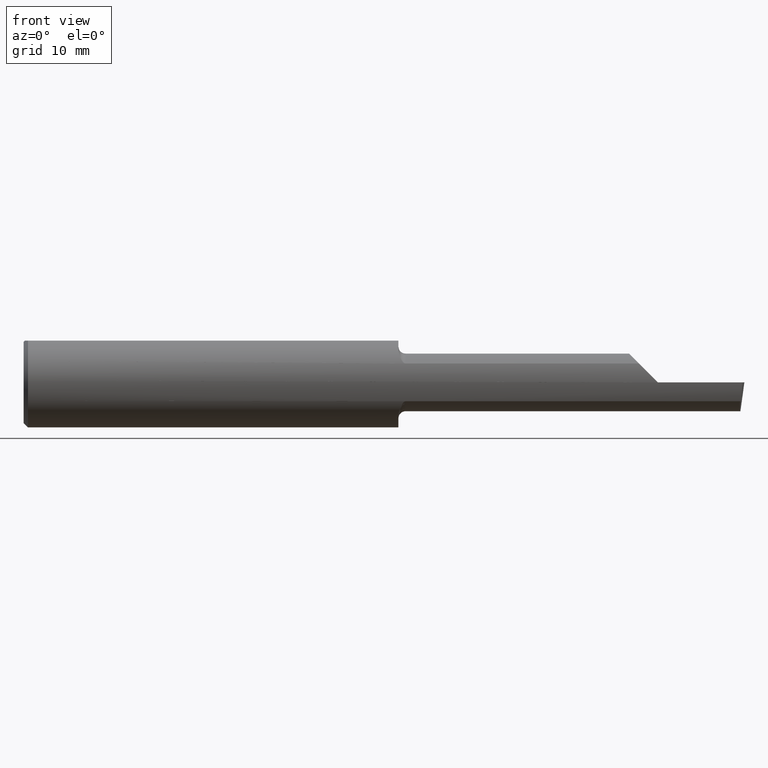
[diagram: clean part render]
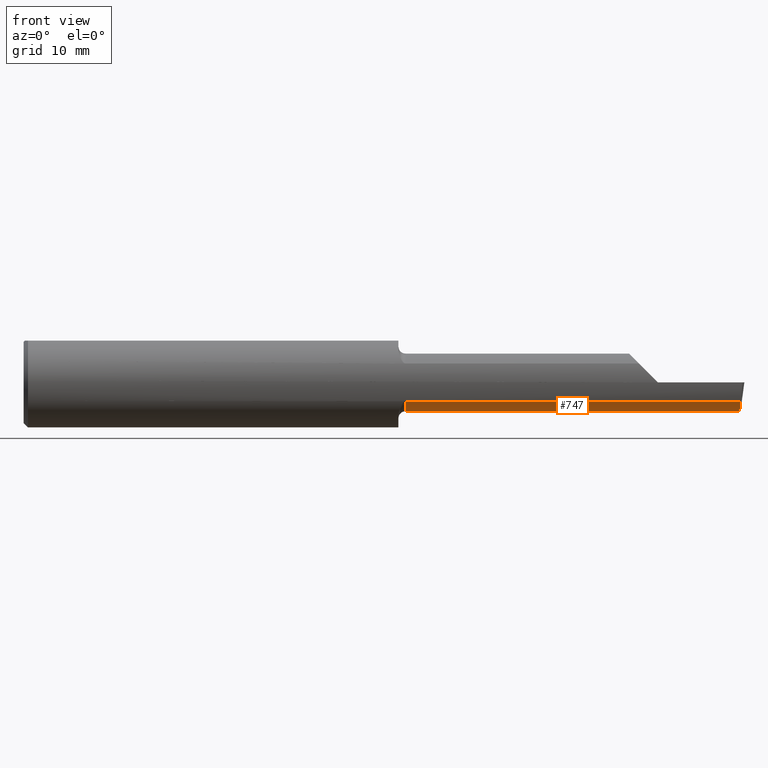
[diagram: same view with one face highlighted and labeled with its STEP entity id]
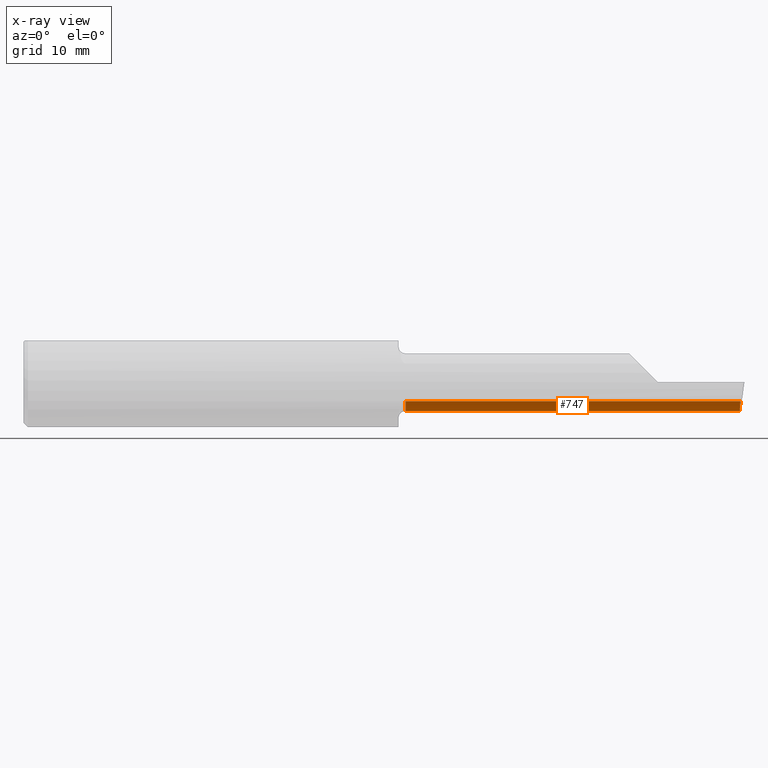
[diagram: x-ray of the same camera — body ghosted, the highlighted face saturated]
A machine part, front view. The second image highlights one B-rep face of the part: STEP entity #747.
The next image is the same camera in x-ray: the body ghosted, the highlighted face saturated — about 0% of this face is hidden behind the body in this view.
In plain terms, the highlighted cylindrical surface (edge-blend (fillet) strip) has radius 2.54 mm, axis along (-1, -0, -0).
Its self-contained STEP definition (entity closure, byte-faithful):
#10 = DIRECTION ( 'NONE',  ( 0.000000000000000000, 0.000000000000000000, -1.000000000000000000 ) ) ;
#44 = CYLINDRICAL_SURFACE ( 'NONE', #188, 2.540000000000000036 ) ;
#52 = CARTESIAN_POINT ( 'NONE',  ( 33.65500000000000114, -3.599887049924355154, -1.661794942640913098 ) ) ;
#82 = ORIENTED_EDGE ( 'NONE', *, *, #187, .F. ) ;
#95 = CARTESIAN_POINT ( 'NONE',  ( 33.65500000000000114, -1.678939999999999433, 0.000000000000000000 ) ) ;
#96 = CARTESIAN_POINT ( 'NONE',  ( 63.09847522314641566, -2.428222866824018222, -2.540000000000000480 ) ) ;
#130 = VERTEX_POINT ( 'NONE', #389 ) ;
#148 = AXIS2_PLACEMENT_3D ( 'NONE', #95, #579, #10 ) ;
#187 = EDGE_CURVE ( 'NONE', #398, #281, #1018, .T. ) ;
#188 = AXIS2_PLACEMENT_3D ( 'NONE', #325, #233, #414 ) ;
#211 = CARTESIAN_POINT ( 'NONE',  ( 63.11601083078465990, -3.109668751225285632, -2.228461364918260301 ) ) ;
#233 = DIRECTION ( 'NONE',  ( -1.000000000000000000, -0.000000000000000000, -0.000000000000000000 ) ) ;
#237 = EDGE_LOOP ( 'NONE', ( #482, #495, #82, #301, #406 ) ) ;
#260 = CARTESIAN_POINT ( 'NONE',  ( 63.11822282597120903, -1.678939999999999433, -2.540000000000000480 ) ) ;
#281 = VERTEX_POINT ( 'NONE', #409 ) ;
#295 = EDGE_CURVE ( 'NONE', #398, #977, #1083, .T. ) ;
#301 = ORIENTED_EDGE ( 'NONE', *, *, #295, .T. ) ;
#321 = CARTESIAN_POINT ( 'NONE',  ( 44.83100000000000307, -3.599887049924355154, -1.661794942640913098 ) ) ;
#325 = CARTESIAN_POINT ( 'NONE',  ( 33.02000000000001023, -1.678939999999999433, 0.000000000000000000 ) ) ;
#329 = VECTOR ( 'NONE', #903, 1000.000000000000000 ) ;
#361 = DIRECTION ( 'NONE',  ( -1.000000000000000000, -0.000000000000000000, -0.000000000000000000 ) ) ;
#389 = CARTESIAN_POINT ( 'NONE',  ( 56.64199999999999591, -1.678939999999999433, -2.540000000000000480 ) ) ;
#398 = VERTEX_POINT ( 'NONE', #992 ) ;
#406 = ORIENTED_EDGE ( 'NONE', *, *, #627, .T. ) ;
#409 = CARTESIAN_POINT ( 'NONE',  ( 63.11822282597120903, -1.678939999999999433, -2.540000000000000480 ) ) ;
#414 = DIRECTION ( 'NONE',  ( 0.000000000000000000, 0.000000000000000000, 1.000000000000000000 ) ) ;
#482 = ORIENTED_EDGE ( 'NONE', *, *, #827, .F. ) ;
#495 = ORIENTED_EDGE ( 'NONE', *, *, #516, .F. ) ;
#510 = VECTOR ( 'NONE', #361, 1000.000000000000000 ) ;
#516 = EDGE_CURVE ( 'NONE', #281, #130, #1218, .T. ) ;
#554 = CIRCLE ( 'NONE', #148, 2.540000000000000036 ) ;
#579 = DIRECTION ( 'NONE',  ( 1.000000000000000000, 0.000000000000000000, 0.000000000000000000 ) ) ;
#600 = CARTESIAN_POINT ( 'NONE',  ( 33.02000000000001023, -1.678939999999999211, -2.540000000000000036 ) ) ;
#627 = EDGE_CURVE ( 'NONE', #977, #934, #554, .T. ) ;
#678 = CARTESIAN_POINT ( 'NONE',  ( 63.16765444560877540, -3.599887049924355598, -1.661794942640913542 ) ) ;
#717 = DIRECTION ( 'NONE',  ( -1.000000000000000000, -0.000000000000000000, -0.000000000000000000 ) ) ;
#747 = ADVANCED_FACE ( 'NONE', ( #1096 ), #44, .T. ) ;
#827 = EDGE_CURVE ( 'NONE', #130, #934, #1198, .T. ) ;
#903 = DIRECTION ( 'NONE',  ( -1.000000000000000000, -0.000000000000000000, -0.000000000000000000 ) ) ;
#934 = VERTEX_POINT ( 'NONE', #1209 ) ;
#977 = VERTEX_POINT ( 'NONE', #52 ) ;
#992 = CARTESIAN_POINT ( 'NONE',  ( 63.16765444560877540, -3.599887049924355598, -1.661794942640913542 ) ) ;
#1018 =( BOUNDED_CURVE ( )  B_SPLINE_CURVE ( 3, ( #678, #211, #96, #260 ),
 .UNSPECIFIED., .F., .T. ) 
 B_SPLINE_CURVE_WITH_KNOTS ( ( 4, 4 ),
 ( 5.652899091607062054, 6.510504952072833085 ),
 .UNSPECIFIED. ) 
 CURVE ( )  GEOMETRIC_REPRESENTATION_ITEM ( )  RATIONAL_B_SPLINE_CURVE ( ( 1.000000000000000000, 0.9396427478180651160, 0.9396427478180651160, 1.000000000000000000 ) ) 
 REPRESENTATION_ITEM ( '' )  );
#1083 = LINE ( 'NONE', #321, #329 ) ;
#1096 = FACE_OUTER_BOUND ( 'NONE', #237, .T. ) ;
#1198 = LINE ( 'NONE', #600, #1211 ) ;
#1209 = CARTESIAN_POINT ( 'NONE',  ( 33.65500000000000114, -1.678939999999999211, -2.540000000000000036 ) ) ;
#1210 = CARTESIAN_POINT ( 'NONE',  ( 63.50000000000002842, -1.678939999999999433, -2.540000000000000480 ) ) ;
#1211 = VECTOR ( 'NONE', #717, 1000.000000000000000 ) ;
#1218 = LINE ( 'NONE', #1210, #510 ) ;